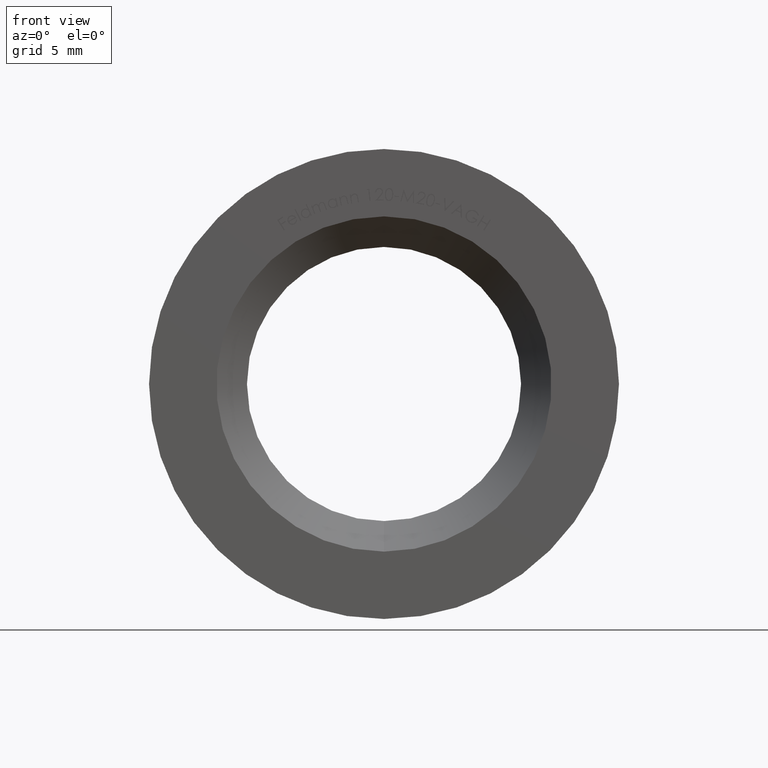
[diagram: clean part render]
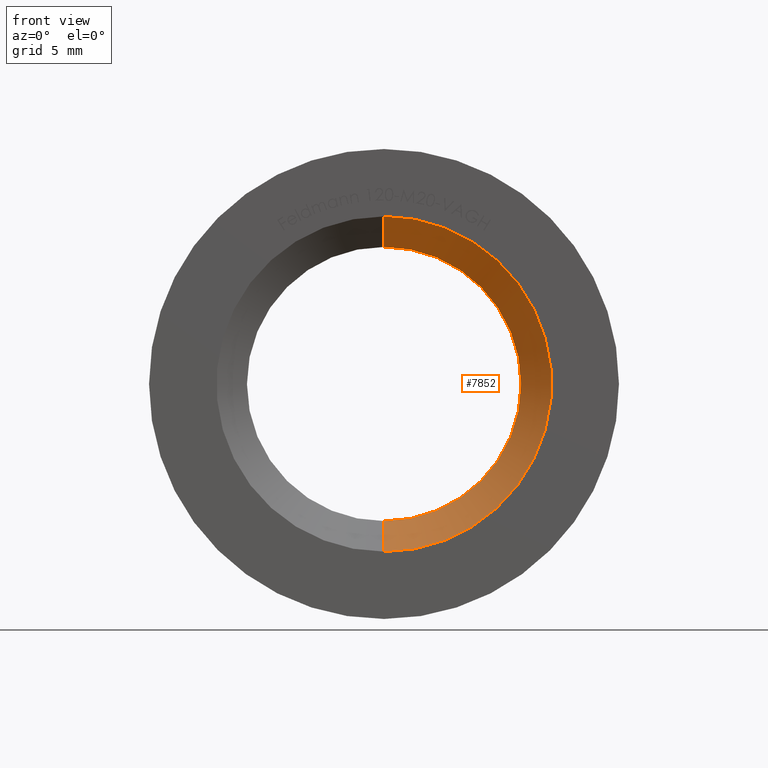
[diagram: same view with one face highlighted and labeled with its STEP entity id]
A machine part, front view. The second image highlights one B-rep face of the part: STEP entity #7852.
In plain terms, the highlighted conical surface has half-angle 45 deg.
Its self-contained STEP definition (entity closure, byte-faithful):
#330 = DIRECTION ( 'NONE',  ( 0.0000000000000000000, 0.0000000000000000000, 1.000000000000000000 ) ) ;
#353 = DIRECTION ( 'NONE',  ( 8.659560562354921800E-017, -0.7071067811865484600, 0.7071067811865465700 ) ) ;
#753 = VERTEX_POINT ( 'NONE', #12322 ) ;
#1019 = DIRECTION ( 'NONE',  ( 0.0000000000000000000, 0.0000000000000000000, 1.000000000000000000 ) ) ;
#1050 = AXIS2_PLACEMENT_3D ( 'NONE', #1170, #9110, #1019 ) ;
#1170 = CARTESIAN_POINT ( 'NONE',  ( -6.123233995736770200E-016, 0.0000000000000000000, 0.0000000000000000000 ) ) ;
#1626 = CARTESIAN_POINT ( 'NONE',  ( -6.123233995736770200E-016, 1.950000000000003700, -8.749999999999996400 ) ) ;
#1781 = VERTEX_POINT ( 'NONE', #2152 ) ;
#2025 = DIRECTION ( 'NONE',  ( 0.0000000000000000000, -1.000000000000000000, 0.0000000000000000000 ) ) ;
#2152 = CARTESIAN_POINT ( 'NONE',  ( 5.786456125971234200E-016, 1.950000000000003700, 8.749999999999996400 ) ) ;
#2844 = EDGE_LOOP ( 'NONE', ( #5176, #6927, #4377, #8489 ) ) ;
#3219 = CARTESIAN_POINT ( 'NONE',  ( 6.980486755139903200E-016, 0.0000000000000000000, 10.69999999999999400 ) ) ;
#4377 = ORIENTED_EDGE ( 'NONE', *, *, #7396, .T. ) ;
#4788 = VECTOR ( 'NONE', #353, 1000.000000000000000 ) ;
#4828 = LINE ( 'NONE', #1626, #10744 ) ;
#5176 = ORIENTED_EDGE ( 'NONE', *, *, #12210, .F. ) ;
#5517 = VERTEX_POINT ( 'NONE', #6693 ) ;
#5915 = CARTESIAN_POINT ( 'NONE',  ( -6.123233995736770200E-016, 1.950000000000003700, 0.0000000000000000000 ) ) ;
#6631 = VERTEX_POINT ( 'NONE', #3219 ) ;
#6693 = CARTESIAN_POINT ( 'NONE',  ( -6.123233995736770200E-016, 0.0000000000000000000, -10.69999999999999400 ) ) ;
#6872 = DIRECTION ( 'NONE',  ( 0.0000000000000000000, 0.0000000000000000000, -1.000000000000000000 ) ) ;
#6927 = ORIENTED_EDGE ( 'NONE', *, *, #7977, .T. ) ;
#7147 = CIRCLE ( 'NONE', #12408, 8.749999999999996400 ) ;
#7286 = DIRECTION ( 'NONE',  ( -0.0000000000000000000, 1.000000000000000000, -0.0000000000000000000 ) ) ;
#7396 = EDGE_CURVE ( 'NONE', #753, #5517, #4828, .T. ) ;
#7490 = EDGE_CURVE ( 'NONE', #6631, #5517, #8081, .T. ) ;
#7668 = DIRECTION ( 'NONE',  ( 0.0000000000000000000, -0.7071067811865484600, -0.7071067811865465700 ) ) ;
#7852 = ADVANCED_FACE ( 'NONE', ( #10434 ), #8395, .F. ) ;
#7977 = EDGE_CURVE ( 'NONE', #1781, #753, #7147, .T. ) ;
#8081 = CIRCLE ( 'NONE', #1050, 10.69999999999999400 ) ;
#8395 = CONICAL_SURFACE ( 'NONE', #11054, 8.749999999999996400, 0.7853981633974469500 ) ;
#8489 = ORIENTED_EDGE ( 'NONE', *, *, #7490, .F. ) ;
#9110 = DIRECTION ( 'NONE',  ( -0.0000000000000000000, 1.000000000000000000, -0.0000000000000000000 ) ) ;
#9169 = CARTESIAN_POINT ( 'NONE',  ( 4.592425496802566100E-016, 1.950000000000003700, 8.749999999999996400 ) ) ;
#10213 = LINE ( 'NONE', #9169, #4788 ) ;
#10434 = FACE_OUTER_BOUND ( 'NONE', #2844, .T. ) ;
#10744 = VECTOR ( 'NONE', #7668, 1000.000000000000000 ) ;
#11054 = AXIS2_PLACEMENT_3D ( 'NONE', #5915, #2025, #6872 ) ;
#12179 = CARTESIAN_POINT ( 'NONE',  ( -6.123233995736770200E-016, 1.950000000000003700, 0.0000000000000000000 ) ) ;
#12210 = EDGE_CURVE ( 'NONE', #1781, #6631, #10213, .T. ) ;
#12322 = CARTESIAN_POINT ( 'NONE',  ( -6.123233995736770200E-016, 1.950000000000003700, -8.749999999999996400 ) ) ;
#12408 = AXIS2_PLACEMENT_3D ( 'NONE', #12179, #7286, #330 ) ;